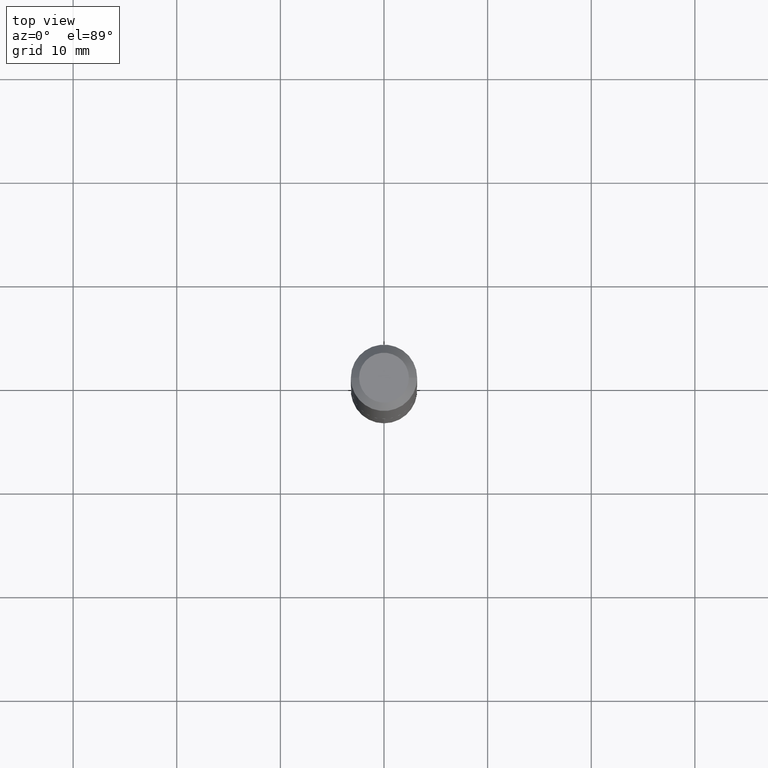
[diagram: clean part render]
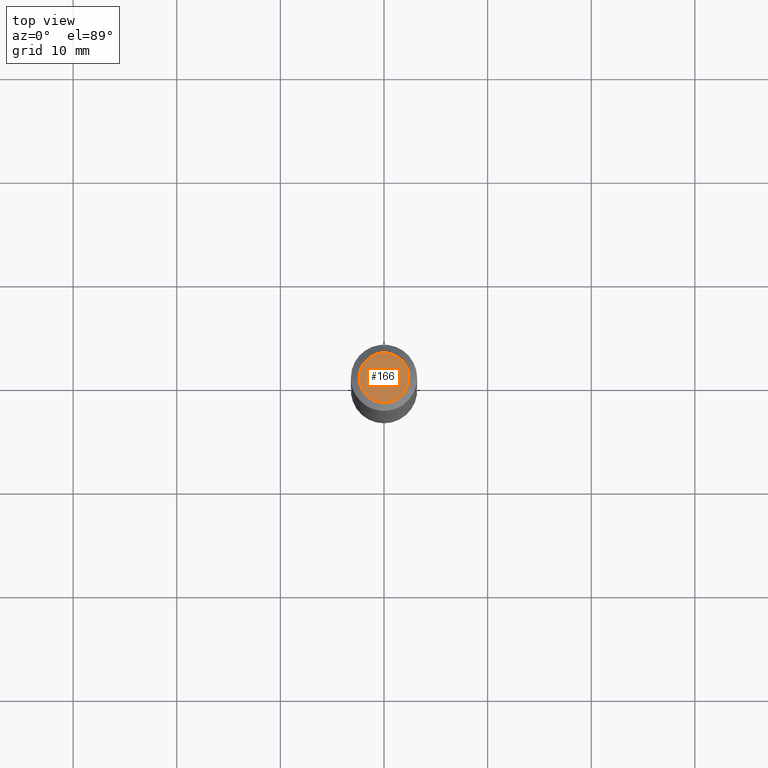
[diagram: same view with one face highlighted and labeled with its STEP entity id]
A machine part, top view. The second image highlights one B-rep face of the part: STEP entity #166.
In plain terms, the highlighted planar face has unit normal (0, -0, -1).
Its self-contained STEP definition (entity closure, byte-faithful):
#7 = ORIENTED_EDGE ( 'NONE', *, *, #27, .T. ) ;
#16 = EDGE_LOOP ( 'NONE', ( #7, #333 ) ) ;
#23 = DIRECTION ( 'NONE',  ( -1.000000000000000000, 6.982962677686265922E-15, -4.876176775795935793E-29 ) ) ;
#27 = EDGE_CURVE ( 'NONE', #154, #366, #30, .T. ) ;
#30 = CIRCLE ( 'NONE', #127, 0.09474999999999998701 ) ;
#81 = CARTESIAN_POINT ( 'NONE',  ( -2.994835545909349753E-48, 4.275831445897006817E-34, 1.224646799147362773E-19 ) ) ;
#106 = DIRECTION ( 'NONE',  ( -2.445468806185136597E-29, 3.491481338843145583E-15, 1.000000000000000000 ) ) ;
#127 = AXIS2_PLACEMENT_3D ( 'NONE', #345, #106, #227 ) ;
#129 = AXIS2_PLACEMENT_3D ( 'NONE', #249, #369, #217 ) ;
#154 = VERTEX_POINT ( 'NONE', #355 ) ;
#166 = ADVANCED_FACE ( 'NONE', ( #265 ), #287, .F. ) ;
#193 = CARTESIAN_POINT ( 'NONE',  ( 0.09474999999999998701, -8.117818624234574270E-16, 2.449293598346239839E-19 ) ) ;
#217 = DIRECTION ( 'NONE',  ( 1.000000000000000000, -6.982962677686266711E-15, 4.876169288824004424E-29 ) ) ;
#227 = DIRECTION ( 'NONE',  ( 1.000000000000000000, -6.982962677686266711E-15, 4.876169288824004424E-29 ) ) ;
#240 = AXIS2_PLACEMENT_3D ( 'NONE', #81, #290, #23 ) ;
#249 = CARTESIAN_POINT ( 'NONE',  ( -5.989671091818699506E-48, 8.551662891794013634E-34, 2.449293598294725547E-19 ) ) ;
#265 = FACE_OUTER_BOUND ( 'NONE', #16, .T. ) ;
#287 = PLANE ( 'NONE',  #240 ) ;
#290 = DIRECTION ( 'NONE',  ( 2.438088387897960049E-29, -3.491481338843145188E-15, -1.000000000000000000 ) ) ;
#333 = ORIENTED_EDGE ( 'NONE', *, *, #375, .T. ) ;
#342 = CIRCLE ( 'NONE', #129, 0.09474999999999998701 ) ;
#345 = CARTESIAN_POINT ( 'NONE',  ( -5.989671091818699506E-48, 8.551662891794013634E-34, 2.449293598294725547E-19 ) ) ;
#355 = CARTESIAN_POINT ( 'NONE',  ( -0.09474999999999998701, 7.161901096301971812E-16, 2.449293598246548890E-19 ) ) ;
#366 = VERTEX_POINT ( 'NONE', #193 ) ;
#369 = DIRECTION ( 'NONE',  ( -2.445468806185136597E-29, 3.491481338843145583E-15, 1.000000000000000000 ) ) ;
#375 = EDGE_CURVE ( 'NONE', #366, #154, #342, .T. ) ;